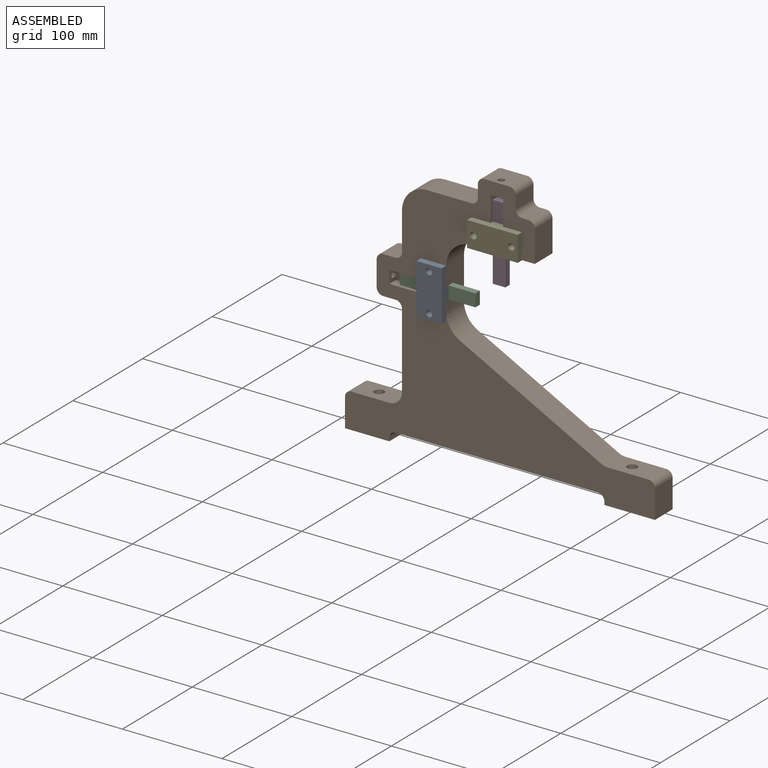
[diagram: assembled view]
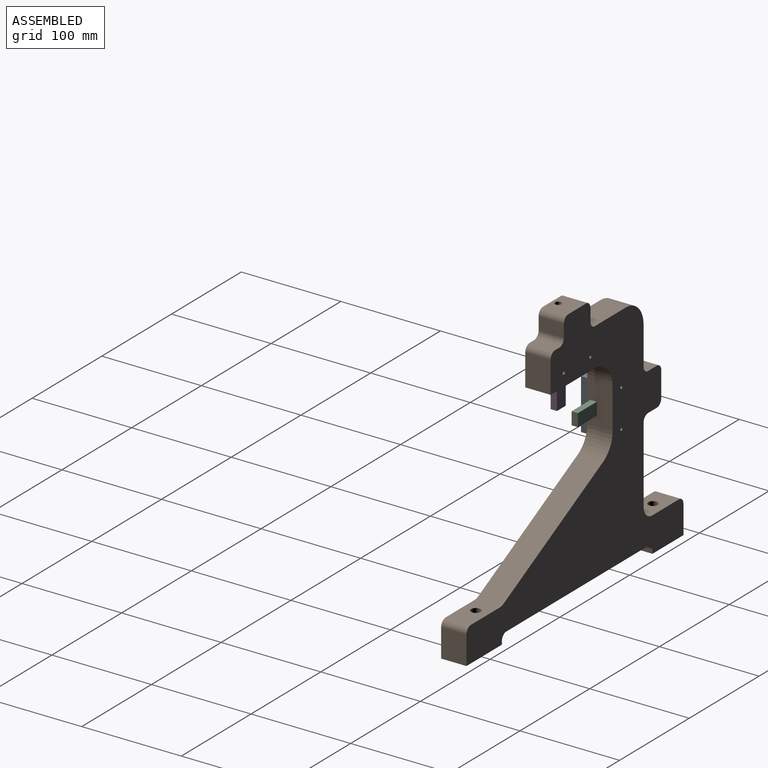
[diagram: assembled view, second angle]
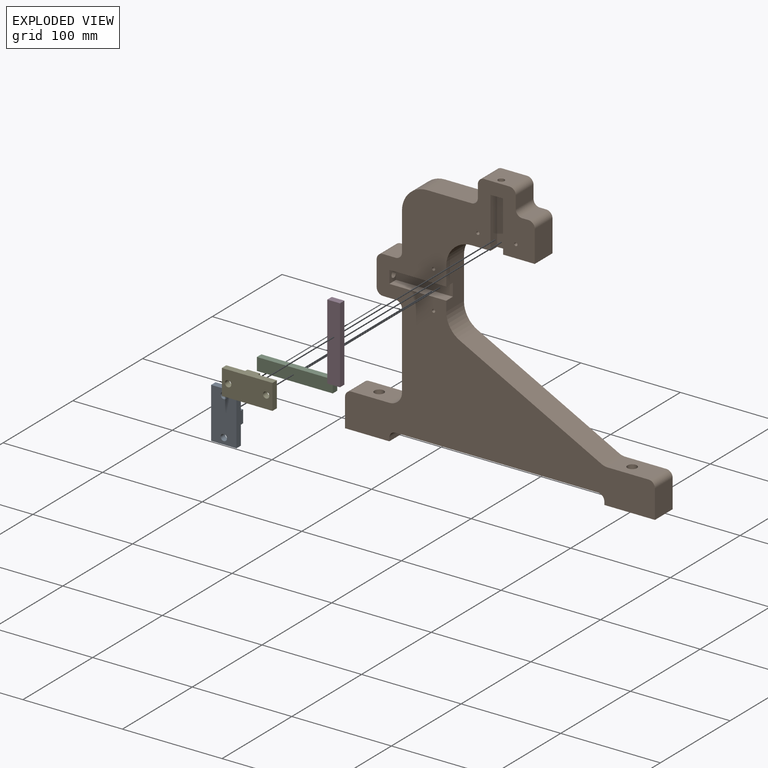
[diagram: exploded view]
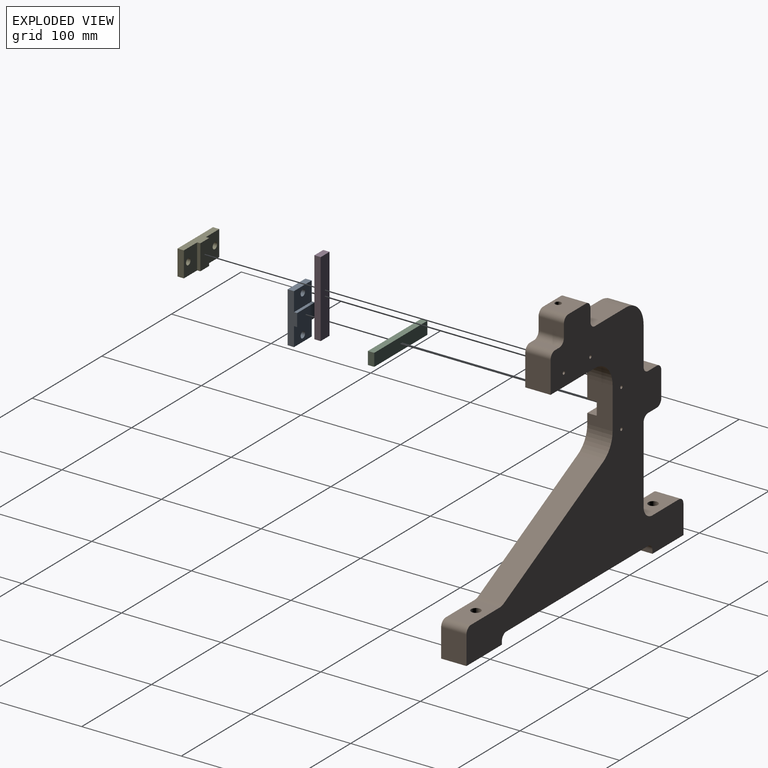
[diagram: exploded view, second angle]
ASSEMBLY  parts=5 mates=10
PART A: 12 faces, bbox 50.8x25.4x9.5 mm
  f0: plane 25.4x6.35mm, normal (-1,0,0), area 161.3mm2, adj f1,f7,f8,f9
  f1: plane 25.4x19.05mm, normal (0,0,-1), area 452.2mm2, adj f0,f2,f8,f9,f11
  f2: plane 25.4x3.18mm, normal (-1,0,0), area 80.6mm2, adj f1,f3,f8,f9
  f3: plane 25.4x12.7mm, normal (0,0,-1), area 322.6mm2, adj f2,f4,f8,f9
  f4: plane 25.4x3.18mm, normal (1,0,0), area 80.6mm2, adj f3,f5,f8,f9
  f5: plane 25.4x19.05mm, normal (0,0,-1), area 452.2mm2, adj f4,f6,f8,f9,f10
  f6: plane 25.4x6.35mm, normal (1,0,0), area 161.3mm2, adj f5,f7,f8,f9
  f7: plane 50.8x25.4mm, normal (0,0,1), area 1227mm2, adj f0,f6,f8,f9,f10,f11
  f8: plane 50.8x9.53mm, normal (0,-1,0), area 362.9mm2, adj f0,f1,f2,f3,f4,f5,f6,f7
  f9: plane 50.8x9.53mm, normal (0,1,0), area 362.9mm2, adj f0,f1,f2,f3,f4,f5,f6,f7
  f10: cylinder r=3.17mm len=6.35mm, axis (0,0,1), area 126.7mm2, adj f5,f7
  f11: cylinder r=3.17mm len=6.35mm, axis (0,0,1), area 126.7mm2, adj f1,f7
PART B: 59 faces, bbox 311.2x25.4x263.5 mm
  f0: plane 41.73x25.4mm, normal (1,0,0), area 939mm2, adj f2,f8,f9,f46,f49,f51,f52
  f1: plane 63.5x25.4mm, normal (0,0,-1), area 1491.9mm2, adj f2,f9,f10,f46,f53,f54,f56
  f2: plane 311.15x263.53mm, normal (0,-1,0), area 28381.4mm2, adj f0,f1,f3,f4,f5,f6,f7,f8
  f3: plane 28.58x25.4mm, normal (1,0,0), area 725.8mm2, adj f2,f4,f45,f46
  f4: cylinder r=6.35mm len=25.4mm, axis (0,1,0), area 253.4mm2, adj f2,f3,f5,f46
  f5: plane 41.35x25.4mm, normal (0,0,1), area 978.9mm2, adj f2,f4,f6,f46,f47
  f6: cylinder r=12.7mm len=25.4mm, axis (0,1,0), area 154.7mm2, adj f2,f5,f7,f46
  f7: plane 142.31x74mm, normal (0.46,0,0.89), area 4074.3mm2, adj f2,f6,f8,f46
  f8: cylinder r=25.4mm len=25.4mm, axis (0,1,0), area 704mm2, adj f0,f2,f7,f46
  f9: cylinder r=25.4mm len=25.4mm, axis (0,1,0), area 1013.4mm2, adj f0,f1,f2,f46
  f10: plane 31.75x25.4mm, normal (1,0,0), area 806.5mm2, adj f1,f2,f11,f46
  f11: cylinder r=6.35mm len=25.4mm, axis (0,1,0), area 253.4mm2, adj f2,f10,f12,f46
  f12: plane 25.4x6.35mm, normal (0,0,1), area 161.3mm2, adj f2,f11,f13,f46
  f13: cylinder r=6.35mm len=25.4mm, axis (0,1,0), area 253.4mm2, adj f2,f12,f14,f46
  f14: plane 25.4x12.7mm, normal (1,0,0), area 322.6mm2, adj f2,f13,f15,f46
  f15: cylinder r=6.35mm len=25.4mm, axis (0,1,0), area 253.4mm2, adj f2,f14,f16,f46
  f16: plane 25.4x25.4mm, normal (0,0,1), area 613.5mm2, adj f2,f15,f17,f46,f57
  f17: cylinder r=6.35mm len=25.4mm, axis (0,1,0), area 253.4mm2, adj f2,f16,f18,f46
  f18: plane 25.4x12.7mm, normal (-1,0,0), area 322.6mm2, adj f2,f17,f19,f46
  f19: cylinder r=6.35mm len=25.4mm, axis (0,1,0), area 253.4mm2, adj f2,f18,f20,f46
  f20: plane 44.45x25.4mm, normal (0,0,1), area 1129mm2, adj f2,f19,f21,f46
  f21: cylinder r=25.4mm len=25.4mm, axis (0,1,0), area 1013.4mm2, adj f2,f20,f22,f46
  f22: plane 38.1x25.4mm, normal (-1,0,0), area 967.7mm2, adj f2,f21,f23,f46
  f23: cylinder r=6.35mm len=25.4mm, axis (0,1,0), area 253.4mm2, adj f2,f22,f24,f46
  f24: plane 25.4x12.7mm, normal (0,0,1), area 322.6mm2, adj f2,f23,f25,f46
  f25: cylinder r=6.35mm len=25.4mm, axis (0,1,0), area 253.4mm2, adj f2,f24,f26,f46
  f26: plane 25.4x25.4mm, normal (-1,0,0), area 613.5mm2, adj f2,f25,f27,f46,f58
  f27: cylinder r=6.35mm len=25.4mm, axis (0,1,0), area 253.4mm2, adj f2,f26,f28,f46
  f28: plane 25.4x12.7mm, normal (0,0,-1), area 322.6mm2, adj f2,f27,f29,f46
  f29: cylinder r=6.35mm len=25.4mm, axis (0,1,0), area 253.4mm2, adj f2,f28,f30,f46
  f30: plane 76.2x25.4mm, normal (-1,0,0), area 1935.5mm2, adj f2,f29,f31,f46
  f31: cylinder r=12.7mm len=25.4mm, axis (0,1,0), area 506.7mm2, adj f2,f30,f32,f46
  f32: plane 38.1x25.4mm, normal (0,0,1), area 896.5mm2, adj f2,f31,f33,f46,f48
  f33: cylinder r=6.35mm len=25.4mm, axis (0,1,0), area 253.4mm2, adj f2,f32,f34,f46
  f34: plane 28.58x25.4mm, normal (-1,0,0), area 725.8mm2, adj f2,f33,f35,f46
  f35: plane 44.45x25.4mm, normal (0,0,-1), area 1057.8mm2, adj f2,f34,f36,f46,f48
  f36: plane 25.4x3.18mm, normal (1,0,0), area 80.6mm2, adj f2,f35,f37,f46
  f37: cylinder r=6.35mm len=25.4mm, axis (0,1,0), area 253.4mm2, adj f2,f36,f38,f46
  f38: plane 203.2x25.4mm, normal (0,0,-1), area 5161.3mm2, adj f2,f37,f39,f46
  f39: cylinder r=6.35mm len=25.4mm, axis (0,1,0), area 253.4mm2, adj f2,f38,f40,f46
  f40: plane 25.4x3.18mm, normal (-1,0,0), area 80.6mm2, adj f2,f39,f45,f46
  f41: cylinder r=1.59mm len=25.4mm, axis (0,1,0), area 253.4mm2, adj f2,f46
  f42: cylinder r=1.59mm len=25.4mm, axis (0,1,0), area 253.4mm2, adj f2,f46
  f43: cylinder r=1.59mm len=25.4mm, axis (0,1,0), area 253.4mm2, adj f2,f46
  f44: cylinder r=1.59mm len=25.4mm, axis (0,1,0), area 253.4mm2, adj f2,f46
  f45: plane 50.8x25.4mm, normal (0,0,-1), area 1219.1mm2, adj f2,f3,f40,f46,f47
  f46: plane 311.15x263.53mm, normal (0,1,0), area 29752.4mm2, adj f0,f1,f3,f4,f5,f6,f7,f8
  f47: cylinder r=4.76mm len=34.93mm, axis (0,0,1), area 1045.1mm2, adj f5,f45
  f48: cylinder r=4.76mm len=34.93mm, axis (0,0,1), area 1045.1mm2, adj f32,f35
  f49: plane 57.15x9.53mm, normal (0,0,-1), area 544.4mm2, adj f0,f2,f50,f52
  f50: plane 12.7x9.53mm, normal (1,0,0), area 89.3mm2, adj f2,f49,f51,f52,f58
  f51: plane 57.15x9.53mm, normal (0,0,1), area 544.4mm2, adj f0,f2,f50,f52
  f52: plane 57.15x12.7mm, normal (0,-1,0), area 725.8mm2, adj f0,f49,f50,f51
  f53: plane 50.8x9.53mm, normal (1,0,0), area 483.9mm2, adj f1,f2,f55,f56
  f54: plane 50.8x9.53mm, normal (-1,0,0), area 483.9mm2, adj f1,f2,f55,f56
  f55: plane 12.7x9.53mm, normal (0,0,-1), area 89.3mm2, adj f2,f53,f54,f56,f57
  f56: plane 50.8x12.7mm, normal (0,-1,0), area 645.2mm2, adj f1,f53,f54,f55
  f57: cylinder r=3.17mm len=12.7mm, axis (0,0,1), area 253.4mm2, adj f16,f55
  f58: cylinder r=3.17mm len=12.7mm, axis (-1,0,0), area 253.4mm2, adj f26,f50
PART C: 6 faces, bbox 6.4x76.2x12.7 mm
  f0: plane 76.2x12.7mm, normal (-1,0,0), area 967.7mm2, adj f1,f3,f4,f5
  f1: plane 76.2x6.35mm, normal (0,0,-1), area 483.9mm2, adj f0,f2,f4,f5
  f2: plane 76.2x12.7mm, normal (1,0,0), area 967.7mm2, adj f1,f3,f4,f5
  f3: plane 76.2x6.35mm, normal (0,0,1), area 483.9mm2, adj f0,f2,f4,f5
  f4: plane 12.7x6.35mm, normal (0,-1,0), area 80.6mm2, adj f0,f1,f2,f3
  f5: plane 12.7x6.35mm, normal (0,1,0), area 80.6mm2, adj f0,f1,f2,f3
PART D: same geometry as C
PART E: same geometry as A
PLACE A rot(axis=(0.58,0.58,-0.58),120deg) t=(23.27,73.87,120.11)mm
PLACE B t=(-78.33,99.27,-54.52)mm fixed
PLACE C rot(axis=(0,0,1),90deg) t=(-25.86,77.05,88.36)mm
PLACE D rot(axis=(0.58,0.58,0.58),120deg) t=(67.72,77.05,190.67)mm
PLACE E rot(axis=(1,0,0),90deg) t=(48.67,73.87,170.91)mm
MATE cylindrical B.f44 <-> A.f10  axis (0,-1,0) through (10.57,73.87,75.66)mm
MATE planar B.f56 <-> D.f2  axis (0,-1,0) through (67.72,83.4,196.31)mm
MATE planar B.f53 <-> D.f1  axis (1,0,0) through (67.72,83.4,170.91)mm
MATE planar B.f43 <-> A.f11  axis (0,-1,0) through (10.57,73.87,113.76)mm
MATE planar C.f3 <-> B.f49  axis (0,0,1) through (12.24,83.4,101.06)mm
MATE planar B.f41 <-> E.f11  axis (0,-1,0) through (55.02,73.87,158.21)mm
MATE cylindrical B.f43 <-> A.f11  axis (0,-1,0) through (10.57,73.87,113.76)mm
MATE planar B.f52 <-> C.f2  axis (0,-1,0) through (23.27,83.4,94.71)mm
MATE cylindrical E.f11 <-> B.f41  axis (0,-1,0) through (55.02,67.52,158.21)mm
MATE cylindrical B.f42 <-> E.f10  axis (0,-1,0) through (93.12,73.87,158.21)mm
